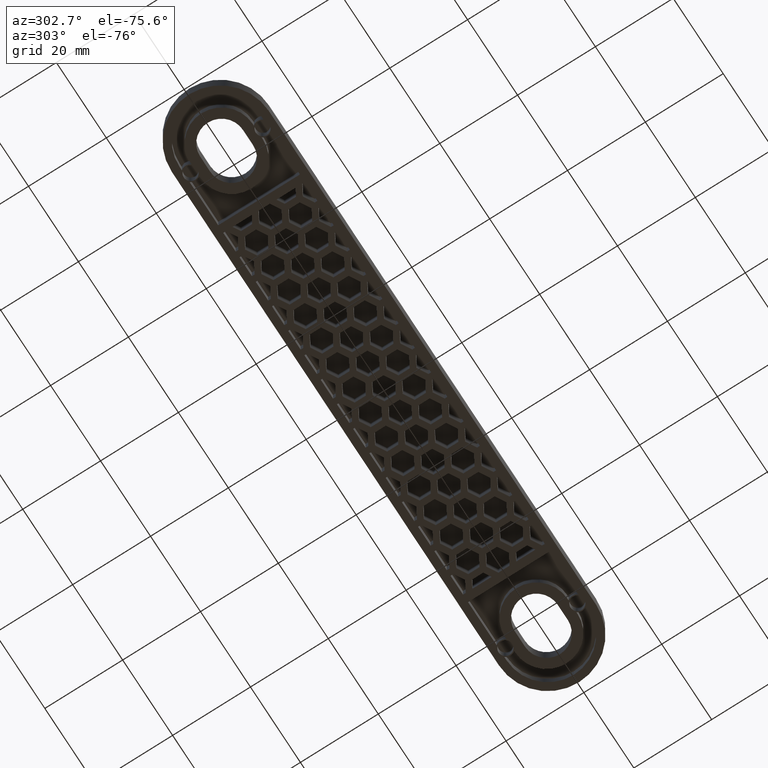
[diagram: clean part render]
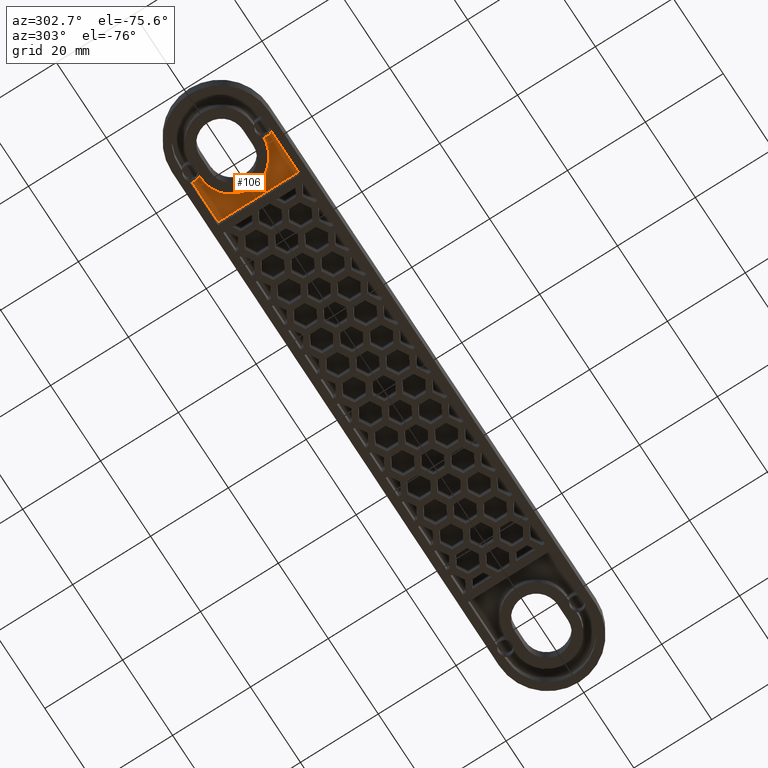
[diagram: same view with one face highlighted and labeled with its STEP entity id]
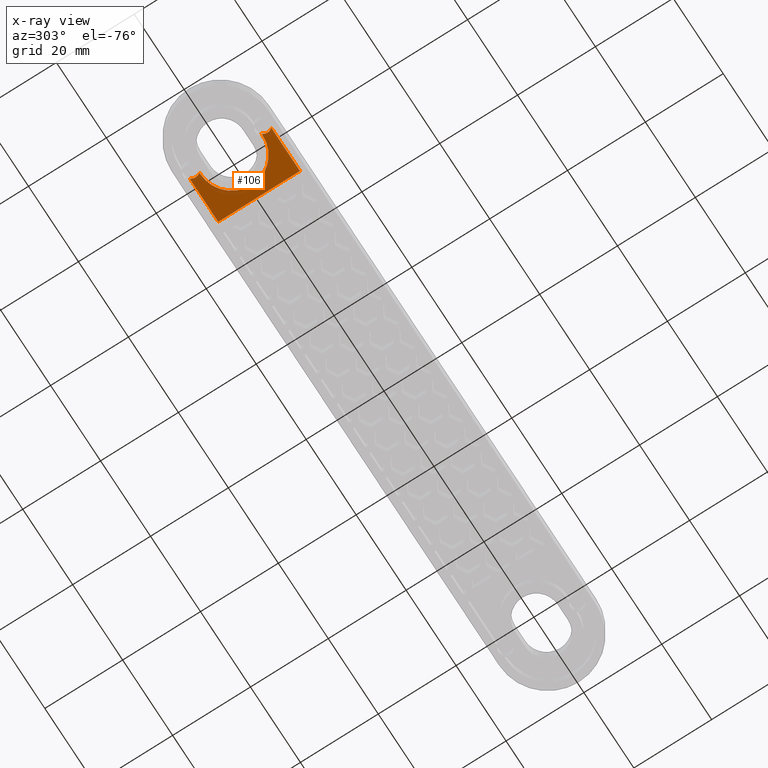
[diagram: x-ray of the same camera — body ghosted, the highlighted face saturated]
A machine part, auxiliary view. The second image highlights one B-rep face of the part: STEP entity #106.
The next image is the same camera in x-ray: the body ghosted, the highlighted face saturated — about 0% of this face is hidden behind the body in this view.
In plain terms, the highlighted planar face has unit normal (0, -0, -1).
Its self-contained STEP definition (entity closure, byte-faithful):
#106 = ADVANCED_FACE( '', ( #842 ), #843, .T. );
#842 = FACE_OUTER_BOUND( '', #2160, .T. );
#843 = PLANE( '', #2161 );
#2160 = EDGE_LOOP( '', ( #4081, #4082, #4083, #4084, #4085, #4086, #4087, #4088, #4089 ) );
#2161 = AXIS2_PLACEMENT_3D( '', #4090, #4091, #4092 );
#4081 = ORIENTED_EDGE( '', *, *, #8273, .F. );
#4082 = ORIENTED_EDGE( '', *, *, #8278, .F. );
#4083 = ORIENTED_EDGE( '', *, *, #8833, .T. );
#4084 = ORIENTED_EDGE( '', *, *, #8834, .F. );
#4085 = ORIENTED_EDGE( '', *, *, #8763, .T. );
#4086 = ORIENTED_EDGE( '', *, *, #8761, .F. );
#4087 = ORIENTED_EDGE( '', *, *, #8835, .F. );
#4088 = ORIENTED_EDGE( '', *, *, #8836, .F. );
#4089 = ORIENTED_EDGE( '', *, *, #8837, .F. );
#4090 = CARTESIAN_POINT( '', ( 65.5000000000000, -8.48992642681068E-015, 2.99999999999998 ) );
#4091 = DIRECTION( '', ( 0.000000000000000, -6.12303176911189E-017, -1.00000000000000 ) );
#4092 = DIRECTION( '', ( 0.000000000000000, -1.00000000000000, 6.12303176911189E-017 ) );
#8273 = EDGE_CURVE( '', #9862, #9864, #9865, .T. );
#8278 = EDGE_CURVE( '', #9871, #9862, #9873, .T. );
#8761 = EDGE_CURVE( '', #10834, #10836, #10837, .T. );
#8763 = EDGE_CURVE( '', #10839, #10836, #10840, .T. );
#8833 = EDGE_CURVE( '', #9871, #10955, #10956, .T. );
#8834 = EDGE_CURVE( '', #10839, #10955, #10957, .T. );
#8835 = EDGE_CURVE( '', #10958, #10834, #10959, .T. );
#8836 = EDGE_CURVE( '', #10960, #10958, #10961, .T. );
#8837 = EDGE_CURVE( '', #9864, #10960, #10962, .T. );
#9862 = VERTEX_POINT( '', #12465 );
#9864 = VERTEX_POINT( '', #12468 );
#9865 = LINE( '', #12469, #12470 );
#9871 = VERTEX_POINT( '', #12478 );
#9873 = CIRCLE( '', #12481, 1.99999999999999 );
#10834 = VERTEX_POINT( '', #13889 );
#10836 = VERTEX_POINT( '', #13892 );
#10837 = CIRCLE( '', #13893, 1.99999999999999 );
#10839 = VERTEX_POINT( '', #13896 );
#10840 = LINE( '', #13897, #13898 );
#10955 = VERTEX_POINT( '', #14066 );
#10956 = LINE( '', #14067, #14068 );
#10957 = LINE( '', #14069, #14070 );
#10958 = VERTEX_POINT( '', #14071 );
#10959 = LINE( '', #14072, #14073 );
#10960 = VERTEX_POINT( '', #14074 );
#10961 = CIRCLE( '', #14075, 8.00000000000023 );
#10962 = CIRCLE( '', #14076, 8.00000000000000 );
#12465 = CARTESIAN_POINT( '', ( -61.4387505004005, 8.00000000000022, 2.99999999999989 ) );
#12468 = CARTESIAN_POINT( '', ( -61.0000000000004, 8.00000000000022, 2.99999999999997 ) );
#12469 = CARTESIAN_POINT( '', ( 65.5000000000000, 8.00000000000023, 2.99999999999997 ) );
#12470 = VECTOR( '', #16427, 1000.00000000000 );
#12478 = CARTESIAN_POINT( '', ( -61.4387505004008, 10.5000000000000, 2.99999999999989 ) );
#12481 = AXIS2_PLACEMENT_3D( '', #16434, #16435, #16436 );
#13889 = CARTESIAN_POINT( '', ( -61.4387505004005, -8.00000000000024, 2.99999999999989 ) );
#13892 = CARTESIAN_POINT( '', ( -61.4387505004008, -10.5000000000000, 2.99999999999989 ) );
#13893 = AXIS2_PLACEMENT_3D( '', #16987, #16988, #16989 );
#13896 = CARTESIAN_POINT( '', ( -49.9999999999999, -10.5000000000000, 2.99999999999999 ) );
#13897 = CARTESIAN_POINT( '', ( 65.5000000000001, -10.5000000000000, 2.99999999999998 ) );
#13898 = VECTOR( '', #16991, 1000.00000000000 );
#14066 = CARTESIAN_POINT( '', ( -49.9999999999999, 10.4999999999999, 2.99999999999999 ) );
#14067 = CARTESIAN_POINT( '', ( -65.5000000000000, 10.5000000000000, 2.99999999999997 ) );
#14068 = VECTOR( '', #17093, 1000.00000000000 );
#14069 = CARTESIAN_POINT( '', ( -49.9999999999999, -10.5000000000000, 2.99999999999999 ) );
#14070 = VECTOR( '', #17094, 1000.00000000000 );
#14071 = CARTESIAN_POINT( '', ( -61.0000000000004, -8.00000000000024, 2.99999999999998 ) );
#14072 = CARTESIAN_POINT( '', ( 65.5000000000000, -8.00000000000022, 2.99999999999998 ) );
#14073 = VECTOR( '', #17095, 1000.00000000000 );
#14074 = CARTESIAN_POINT( '', ( -53.0000000000002, -5.02047947485707E-015, 2.99999999999998 ) );
#14075 = AXIS2_PLACEMENT_3D( '', #17096, #17097, #17098 );
#14076 = AXIS2_PLACEMENT_3D( '', #17099, #17100, #17101 );
#16427 = DIRECTION( '', ( 1.00000000000000, 1.15648231731786E-016, -7.08117796935338E-033 ) );
#16434 = CARTESIAN_POINT( '', ( -63.0000000000003, 9.24999999999998, 2.99999999999989 ) );
#16435 = DIRECTION( '', ( 0.000000000000000, -6.12303176911189E-017, -1.00000000000000 ) );
#16436 = DIRECTION( '', ( 1.00000000000000, 6.12303176911189E-017, -3.74915180455535E-033 ) );
#16987 = CARTESIAN_POINT( '', ( -63.0000000000003, -9.24999999999999, 2.99999999999989 ) );
#16988 = DIRECTION( '', ( 0.000000000000000, -6.12303176911189E-017, -1.00000000000000 ) );
#16989 = DIRECTION( '', ( 1.00000000000000, 6.12303176911189E-017, -3.74915180455535E-033 ) );
#16991 = DIRECTION( '', ( -1.00000000000000, 0.000000000000000, 0.000000000000000 ) );
#17093 = DIRECTION( '', ( 1.00000000000000, 0.000000000000000, 0.000000000000000 ) );
#17094 = DIRECTION( '', ( 8.67361737988409E-016, 1.00000000000000, -6.12303176911189E-017 ) );
#17095 = DIRECTION( '', ( -1.00000000000000, -1.15648231731786E-016, 7.08117796935338E-033 ) );
#17096 = CARTESIAN_POINT( '', ( -61.0000000000004, -5.02047947485707E-015, 2.99999999999998 ) );
#17097 = DIRECTION( '', ( 0.000000000000000, -6.12303176911189E-017, -1.00000000000000 ) );
#17098 = DIRECTION( '', ( 0.000000000000000, 1.00000000000000, -6.12303176911189E-017 ) );
#17099 = CARTESIAN_POINT( '', ( -61.0000000000004, 2.17024125450174E-013, 2.99999999999998 ) );
#17100 = DIRECTION( '', ( 0.000000000000000, -6.12303176911189E-017, -1.00000000000000 ) );
#17101 = DIRECTION( '', ( 0.000000000000000, 1.00000000000000, -6.12303176911189E-017 ) );